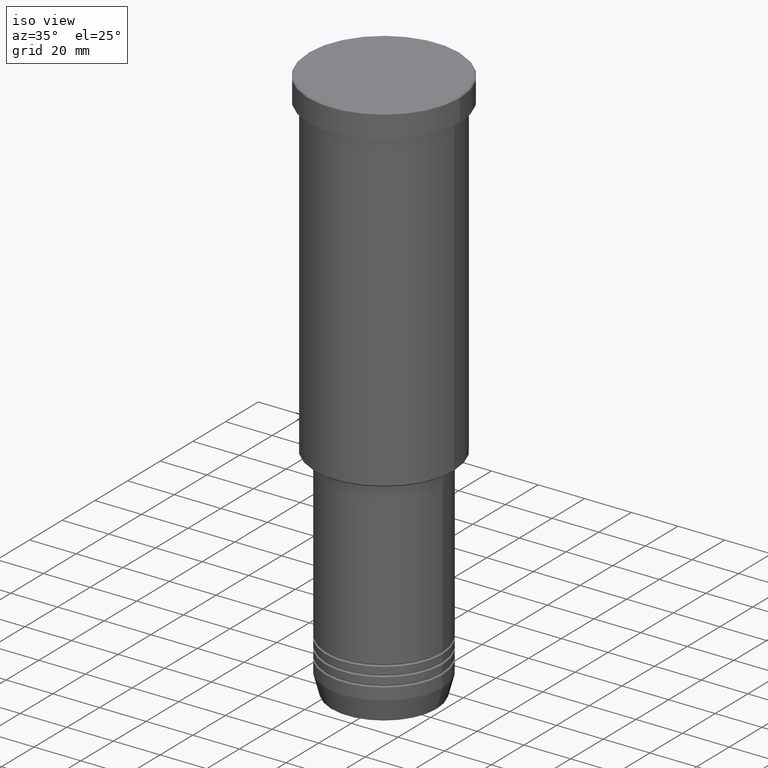
[diagram: clean part render]
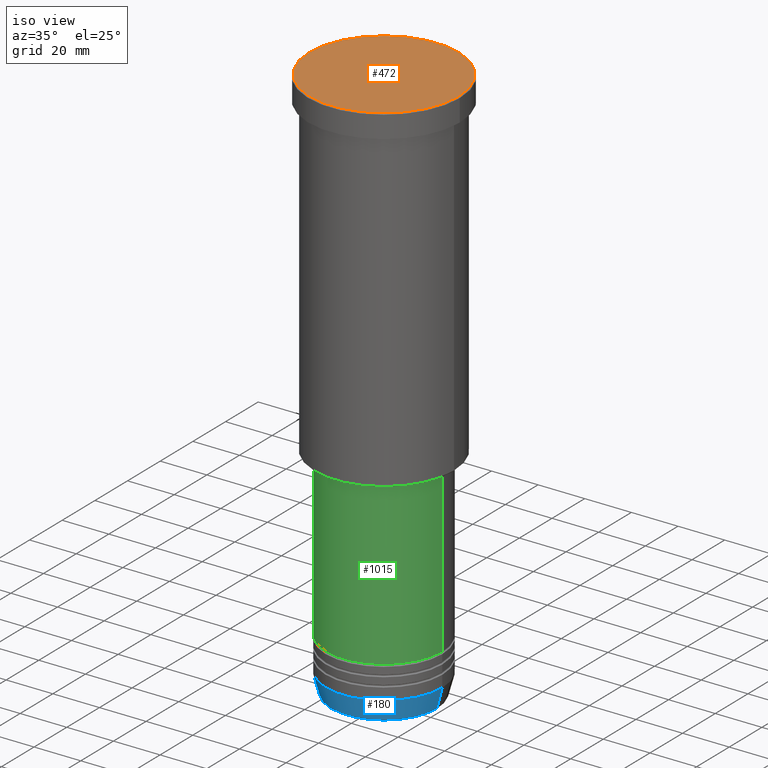
[diagram: same view with three faces highlighted in distinct colors, each labeled with its STEP entity id]
A machine part, iso view with three faces highlighted in distinct colors.
Their STEP definitions:

[orange] entity #472 — the highlighted planar face has unit normal (0, -0, 1).
#75 = PLANE ( 'NONE',  #267 ) ;
#225 = ORIENTED_EDGE ( 'NONE', *, *, #1142, .T. ) ;
#227 = DIRECTION ( 'NONE',  ( -0.000000000000000000, -0.000000000000000000, 1.000000000000000000 ) ) ;
#248 = DIRECTION ( 'NONE',  ( 1.000000000000000000, 0.000000000000000000, 0.000000000000000000 ) ) ;
#267 = AXIS2_PLACEMENT_3D ( 'NONE', #341, #907, #714 ) ;
#341 = CARTESIAN_POINT ( 'NONE',  ( 0.000000000000000000, 0.000000000000000000, 0.000000000000000000 ) ) ;
#472 = ADVANCED_FACE ( 'NONE', ( #729 ), #75, .T. ) ;
#623 = CIRCLE ( 'NONE', #917, 31.99999999999997158 ) ;
#628 = CARTESIAN_POINT ( 'NONE',  ( 0.000000000000000000, 0.000000000000000000, 0.000000000000000000 ) ) ;
#686 = CIRCLE ( 'NONE', #837, 31.99999999999997158 ) ;
#688 = EDGE_LOOP ( 'NONE', ( #225, #1160 ) ) ;
#714 = DIRECTION ( 'NONE',  ( 1.000000000000000000, 0.000000000000000000, 0.000000000000000000 ) ) ;
#729 = FACE_OUTER_BOUND ( 'NONE', #688, .T. ) ;
#734 = CARTESIAN_POINT ( 'NONE',  ( 31.99999999999997158, 3.949485927250213261E-15, 0.000000000000000000 ) ) ;
#837 = AXIS2_PLACEMENT_3D ( 'NONE', #628, #905, #248 ) ;
#866 = CARTESIAN_POINT ( 'NONE',  ( 0.000000000000000000, 0.000000000000000000, 0.000000000000000000 ) ) ;
#867 = EDGE_CURVE ( 'NONE', #995, #972, #686, .T. ) ;
#905 = DIRECTION ( 'NONE',  ( -0.000000000000000000, -0.000000000000000000, 1.000000000000000000 ) ) ;
#907 = DIRECTION ( 'NONE',  ( 0.000000000000000000, -0.000000000000000000, 1.000000000000000000 ) ) ;
#917 = AXIS2_PLACEMENT_3D ( 'NONE', #866, #227, #1131 ) ;
#972 = VERTEX_POINT ( 'NONE', #978 ) ;
#978 = CARTESIAN_POINT ( 'NONE',  ( -31.99999999999997158, 0.000000000000000000, 0.000000000000000000 ) ) ;
#995 = VERTEX_POINT ( 'NONE', #734 ) ;
#1131 = DIRECTION ( 'NONE',  ( 1.000000000000000000, 0.000000000000000000, 0.000000000000000000 ) ) ;
#1142 = EDGE_CURVE ( 'NONE', #972, #995, #623, .T. ) ;
#1160 = ORIENTED_EDGE ( 'NONE', *, *, #867, .T. ) ;

[blue] entity #180 — the highlighted conical surface has half-angle 15 deg.
#8 = DIRECTION ( 'NONE',  ( -0.000000000000000000, -0.000000000000000000, 1.000000000000000000 ) ) ;
#19 = CARTESIAN_POINT ( 'NONE',  ( 25.00000000000000000, 0.000000000000000000, -231.0000000000000000 ) ) ;
#20 = EDGE_CURVE ( 'NONE', #1033, #280, #643, .T. ) ;
#29 = AXIS2_PLACEMENT_3D ( 'NONE', #324, #42, #675 ) ;
#42 = DIRECTION ( 'NONE',  ( -0.000000000000000000, -0.000000000000000000, 1.000000000000000000 ) ) ;
#50 = CIRCLE ( 'NONE', #192, 25.00000000000000000 ) ;
#74 = EDGE_CURVE ( 'NONE', #126, #219, #1072, .T. ) ;
#96 = CARTESIAN_POINT ( 'NONE',  ( 22.68775668727493766, 0.000000000000000000, -239.6294095225512706 ) ) ;
#101 = VECTOR ( 'NONE', #829, 1000.000000000000114 ) ;
#126 = VERTEX_POINT ( 'NONE', #96 ) ;
#177 = CARTESIAN_POINT ( 'NONE',  ( -22.68775668727493766, 2.920032929279452187E-15, -239.6294095225512706 ) ) ;
#180 = ADVANCED_FACE ( 'NONE', ( #1122 ), #895, .T. ) ;
#187 = DIRECTION ( 'NONE',  ( 1.000000000000000000, 0.000000000000000000, 0.000000000000000000 ) ) ;
#192 = AXIS2_PLACEMENT_3D ( 'NONE', #846, #1092, #655 ) ;
#219 = VERTEX_POINT ( 'NONE', #19 ) ;
#254 = DIRECTION ( 'NONE',  ( -0.2588190451025212391, 3.169619151431771721E-17, 0.9659258262890680902 ) ) ;
#268 = CIRCLE ( 'NONE', #29, 22.68775668727493766 ) ;
#280 = VERTEX_POINT ( 'NONE', #976 ) ;
#324 = CARTESIAN_POINT ( 'NONE',  ( 0.000000000000000000, 0.000000000000000000, -239.6294095225512706 ) ) ;
#355 = CARTESIAN_POINT ( 'NONE',  ( -25.00000000000000000, 3.061616997868383043E-15, -231.0000000000000000 ) ) ;
#436 = EDGE_LOOP ( 'NONE', ( #565, #596, #975, #781 ) ) ;
#565 = ORIENTED_EDGE ( 'NONE', *, *, #20, .F. ) ;
#596 = ORIENTED_EDGE ( 'NONE', *, *, #778, .T. ) ;
#616 = CARTESIAN_POINT ( 'NONE',  ( 25.00000000000000000, 0.000000000000000000, -231.0000000000000000 ) ) ;
#643 = LINE ( 'NONE', #355, #724 ) ;
#655 = DIRECTION ( 'NONE',  ( 1.000000000000000000, 0.000000000000000000, 0.000000000000000000 ) ) ;
#675 = DIRECTION ( 'NONE',  ( 1.000000000000000000, 0.000000000000000000, 0.000000000000000000 ) ) ;
#724 = VECTOR ( 'NONE', #254, 1000.000000000000114 ) ;
#778 = EDGE_CURVE ( 'NONE', #1033, #126, #268, .T. ) ;
#781 = ORIENTED_EDGE ( 'NONE', *, *, #1071, .F. ) ;
#829 = DIRECTION ( 'NONE',  ( 0.2588190451025212391, 0.000000000000000000, 0.9659258262890680902 ) ) ;
#846 = CARTESIAN_POINT ( 'NONE',  ( 0.000000000000000000, 0.000000000000000000, -231.0000000000000000 ) ) ;
#895 = CONICAL_SURFACE ( 'NONE', #913, 25.00000000000000000, 0.2617993877991499629 ) ;
#913 = AXIS2_PLACEMENT_3D ( 'NONE', #1032, #8, #187 ) ;
#975 = ORIENTED_EDGE ( 'NONE', *, *, #74, .T. ) ;
#976 = CARTESIAN_POINT ( 'NONE',  ( -25.00000000000000000, 3.061616997868383043E-15, -231.0000000000000000 ) ) ;
#1032 = CARTESIAN_POINT ( 'NONE',  ( 0.000000000000000000, 0.000000000000000000, -231.0000000000000000 ) ) ;
#1033 = VERTEX_POINT ( 'NONE', #177 ) ;
#1071 = EDGE_CURVE ( 'NONE', #280, #219, #50, .T. ) ;
#1072 = LINE ( 'NONE', #616, #101 ) ;
#1092 = DIRECTION ( 'NONE',  ( -0.000000000000000000, -0.000000000000000000, 1.000000000000000000 ) ) ;
#1122 = FACE_OUTER_BOUND ( 'NONE', #436, .T. ) ;

[green] entity #1015 — the highlighted cylindrical surface (partial cylindrical patch) has radius 25 mm, axis along (-0, -0, 1).
#11 = DIRECTION ( 'NONE',  ( -0.000000000000000000, -0.000000000000000000, 1.000000000000000000 ) ) ;
#88 = ORIENTED_EDGE ( 'NONE', *, *, #519, .T. ) ;
#124 = CARTESIAN_POINT ( 'NONE',  ( 25.00000000000000000, 0.000000000000000000, -217.0000000000000000 ) ) ;
#125 = CARTESIAN_POINT ( 'NONE',  ( -25.00000000000000355, 3.061616997868383437E-15, 0.000000000000000000 ) ) ;
#194 = EDGE_CURVE ( 'NONE', #1046, #678, #1021, .T. ) ;
#197 = ORIENTED_EDGE ( 'NONE', *, *, #205, .T. ) ;
#204 = DIRECTION ( 'NONE',  ( -0.000000000000000000, -0.000000000000000000, 1.000000000000000000 ) ) ;
#205 = EDGE_CURVE ( 'NONE', #750, #678, #647, .T. ) ;
#249 = CIRCLE ( 'NONE', #582, 25.00000000000000000 ) ;
#272 = DIRECTION ( 'NONE',  ( 1.000000000000000000, 0.000000000000000000, 0.000000000000000000 ) ) ;
#298 = EDGE_CURVE ( 'NONE', #825, #1046, #1059, .T. ) ;
#371 = DIRECTION ( 'NONE',  ( -0.000000000000000000, -0.000000000000000000, 1.000000000000000000 ) ) ;
#385 = FACE_OUTER_BOUND ( 'NONE', #626, .T. ) ;
#429 = AXIS2_PLACEMENT_3D ( 'NONE', #751, #11, #1017 ) ;
#505 = DIRECTION ( 'NONE',  ( -0.000000000000000000, -0.000000000000000000, 1.000000000000000000 ) ) ;
#519 = EDGE_CURVE ( 'NONE', #825, #750, #249, .T. ) ;
#558 = CARTESIAN_POINT ( 'NONE',  ( -25.00000000000001066, 3.061616997868384226E-15, -147.0000000000000000 ) ) ;
#564 = ORIENTED_EDGE ( 'NONE', *, *, #298, .F. ) ;
#567 = CARTESIAN_POINT ( 'NONE',  ( 0.000000000000000000, 0.000000000000000000, -217.0000000000000000 ) ) ;
#580 = VECTOR ( 'NONE', #371, 1000.000000000000000 ) ;
#582 = AXIS2_PLACEMENT_3D ( 'NONE', #567, #650, #272 ) ;
#626 = EDGE_LOOP ( 'NONE', ( #564, #88, #197, #693 ) ) ;
#638 = VECTOR ( 'NONE', #505, 1000.000000000000000 ) ;
#647 = LINE ( 'NONE', #924, #580 ) ;
#650 = DIRECTION ( 'NONE',  ( -0.000000000000000000, -0.000000000000000000, 1.000000000000000000 ) ) ;
#657 = AXIS2_PLACEMENT_3D ( 'NONE', #848, #204, #742 ) ;
#678 = VERTEX_POINT ( 'NONE', #785 ) ;
#693 = ORIENTED_EDGE ( 'NONE', *, *, #194, .F. ) ;
#742 = DIRECTION ( 'NONE',  ( 1.000000000000000000, 0.000000000000000000, 0.000000000000000000 ) ) ;
#750 = VERTEX_POINT ( 'NONE', #124 ) ;
#751 = CARTESIAN_POINT ( 'NONE',  ( 0.000000000000000000, 0.000000000000000000, 0.000000000000000000 ) ) ;
#785 = CARTESIAN_POINT ( 'NONE',  ( 25.00000000000000711, 0.000000000000000000, -147.0000000000000000 ) ) ;
#825 = VERTEX_POINT ( 'NONE', #949 ) ;
#848 = CARTESIAN_POINT ( 'NONE',  ( 0.000000000000000000, 0.000000000000000000, -147.0000000000000000 ) ) ;
#924 = CARTESIAN_POINT ( 'NONE',  ( 25.00000000000000355, 0.000000000000000000, 0.000000000000000000 ) ) ;
#932 = CYLINDRICAL_SURFACE ( 'NONE', #429, 25.00000000000000355 ) ;
#949 = CARTESIAN_POINT ( 'NONE',  ( -25.00000000000000000, 3.061616997868383437E-15, -217.0000000000000000 ) ) ;
#1015 = ADVANCED_FACE ( 'NONE', ( #385 ), #932, .T. ) ;
#1017 = DIRECTION ( 'NONE',  ( 1.000000000000000000, 0.000000000000000000, 0.000000000000000000 ) ) ;
#1021 = CIRCLE ( 'NONE', #657, 25.00000000000000711 ) ;
#1046 = VERTEX_POINT ( 'NONE', #558 ) ;
#1059 = LINE ( 'NONE', #125, #638 ) ;